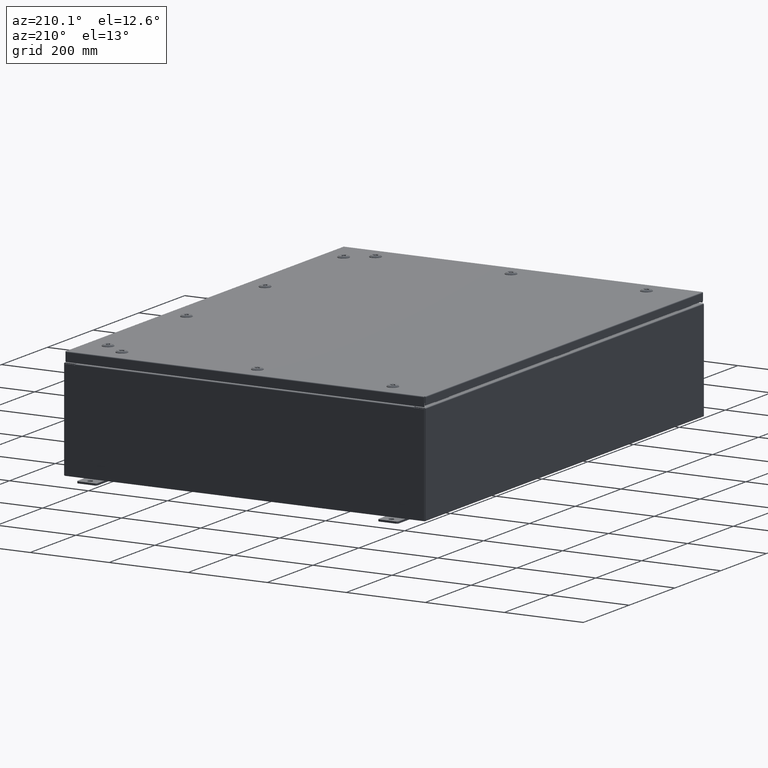
[diagram: clean part render]
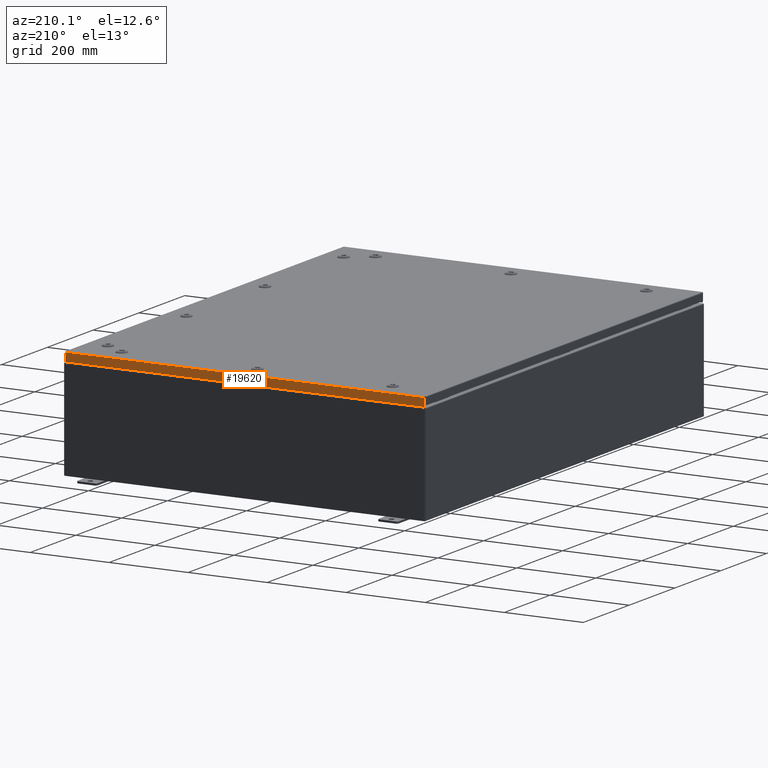
[diagram: same view with one face highlighted and labeled with its STEP entity id]
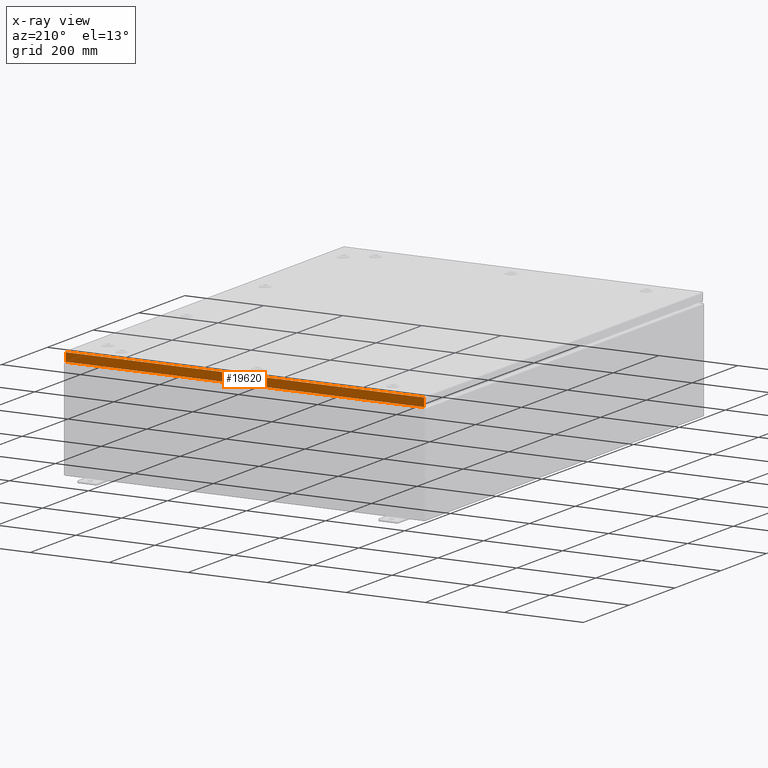
[diagram: x-ray of the same camera — body ghosted, the highlighted face saturated]
A machine part, auxiliary view. The second image highlights one B-rep face of the part: STEP entity #19620.
The next image is the same camera in x-ray: the body ghosted, the highlighted face saturated — about 0% of this face is hidden behind the body in this view.
In plain terms, the highlighted planar face has unit normal (0, -1, -0).
Its self-contained STEP definition (entity closure, byte-faithful):
#99 = EDGE_CURVE ( 'NONE', #18652, #57025, #53112, .T. ) ;
#2460 = CARTESIAN_POINT ( 'NONE',  ( -17.93749999999999600, 23.93750000000000400, -0.08769999999999550400 ) ) ;
#3955 = DIRECTION ( 'NONE',  ( 0.0000000000000000000, 5.064839849203706900E-015, -1.000000000000000000 ) ) ;
#4052 = CARTESIAN_POINT ( 'NONE',  ( -17.84865786437626100, 23.93750000000000400, -0.08769999999999550400 ) ) ;
#6482 = EDGE_CURVE ( 'NONE', #8977, #18652, #21220, .T. ) ;
#8234 = CARTESIAN_POINT ( 'NONE',  ( -1.477165351427584500E-029, 23.93750000000000400, 1.215004175463253400E-013 ) ) ;
#8746 = VECTOR ( 'NONE', #33963, 39.37007874015748100 ) ;
#8977 = VERTEX_POINT ( 'NONE', #4052 ) ;
#11325 = DIRECTION ( 'NONE',  ( 1.000000000000000000, 8.758115402030108600E-047, 1.218385167906012900E-016 ) ) ;
#13755 = LINE ( 'NONE', #2460, #68555 ) ;
#14844 = ORIENTED_EDGE ( 'NONE', *, *, #99, .F. ) ;
#16465 = CARTESIAN_POINT ( 'NONE',  ( 17.84865786437627100, 23.93750000000000400, -0.08769999999999550400 ) ) ;
#16836 = ORIENTED_EDGE ( 'NONE', *, *, #40524, .T. ) ;
#18652 = VERTEX_POINT ( 'NONE', #19905 ) ;
#19620 = ADVANCED_FACE ( 'NONE', ( #25598 ), #24278, .F. ) ;
#19905 = CARTESIAN_POINT ( 'NONE',  ( -17.84865786437626100, 23.93750000000000700, -0.9377000000000042000 ) ) ;
#21220 = LINE ( 'NONE', #28878, #8746 ) ;
#24278 = PLANE ( 'NONE',  #31426 ) ;
#25487 = EDGE_CURVE ( 'NONE', #57548, #8977, #13755, .T. ) ;
#25598 = FACE_OUTER_BOUND ( 'NONE', #58620, .T. ) ;
#28878 = CARTESIAN_POINT ( 'NONE',  ( -17.84865786437626100, 23.93750000000000400, -0.07469999999999962800 ) ) ;
#29605 = DIRECTION ( 'NONE',  ( 6.170925750089124300E-031, -1.000000000000000000, -5.064839849203706900E-015 ) ) ;
#31426 = AXIS2_PLACEMENT_3D ( 'NONE', #8234, #29605, #66739 ) ;
#33963 = DIRECTION ( 'NONE',  ( -0.0000000000000000000, 5.064839849203706900E-015, -1.000000000000000000 ) ) ;
#35791 = CARTESIAN_POINT ( 'NONE',  ( 17.84865786437627500, 23.93750000000000400, 1.215004175463253400E-013 ) ) ;
#38963 = VECTOR ( 'NONE', #11325, 39.37007874015748100 ) ;
#40444 = VECTOR ( 'NONE', #3955, 39.37007874015748100 ) ;
#40524 = EDGE_CURVE ( 'NONE', #57548, #57025, #54626, .T. ) ;
#48375 = ORIENTED_EDGE ( 'NONE', *, *, #25487, .F. ) ;
#53112 = LINE ( 'NONE', #64076, #38963 ) ;
#54212 = CARTESIAN_POINT ( 'NONE',  ( 17.84865786437627100, 23.93750000000000700, -0.9376999999999997600 ) ) ;
#54626 = LINE ( 'NONE', #35791, #40444 ) ;
#57025 = VERTEX_POINT ( 'NONE', #54212 ) ;
#57548 = VERTEX_POINT ( 'NONE', #16465 ) ;
#58620 = EDGE_LOOP ( 'NONE', ( #48375, #16836, #14844, #58921 ) ) ;
#58921 = ORIENTED_EDGE ( 'NONE', *, *, #6482, .F. ) ;
#60765 = DIRECTION ( 'NONE',  ( -1.000000000000000000, -6.170925750089125200E-031, -3.189293793798670500E-045 ) ) ;
#64076 = CARTESIAN_POINT ( 'NONE',  ( -17.93749999999999600, 23.93750000000000700, -0.9377000000000042000 ) ) ;
#66739 = DIRECTION ( 'NONE',  ( 0.0000000000000000000, 5.064839849203706900E-015, -1.000000000000000000 ) ) ;
#68555 = VECTOR ( 'NONE', #60765, 39.37007874015748100 ) ;